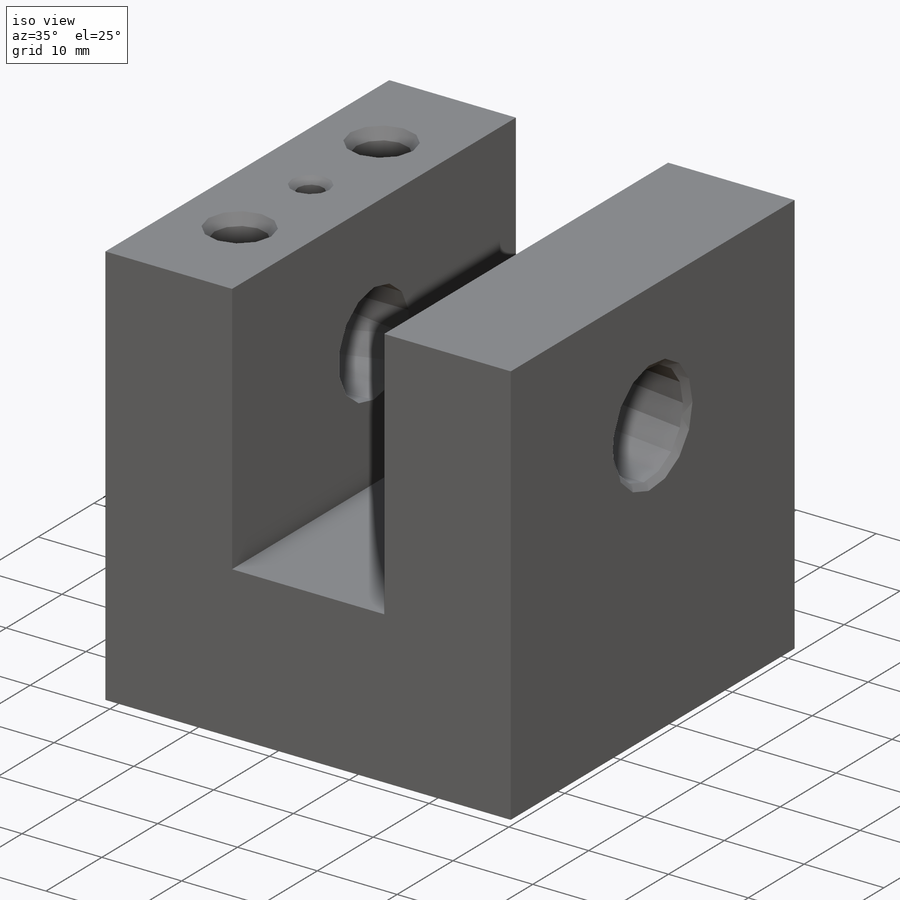
[diagram: iso view]
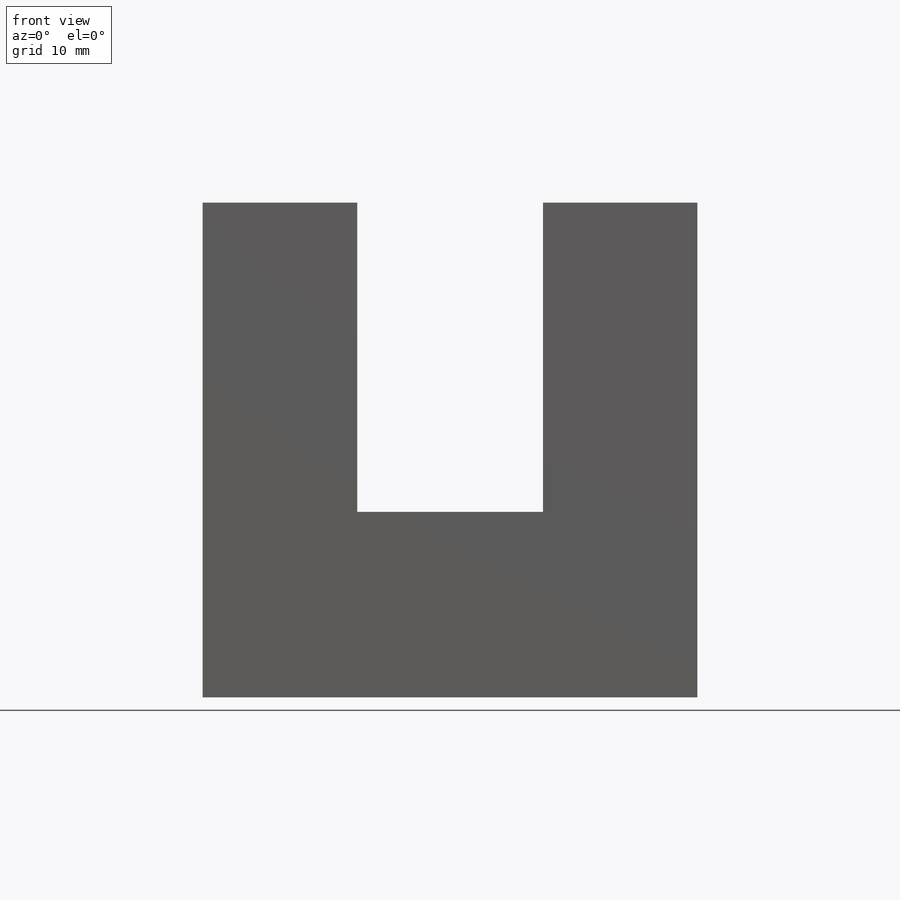
[diagram: front view]
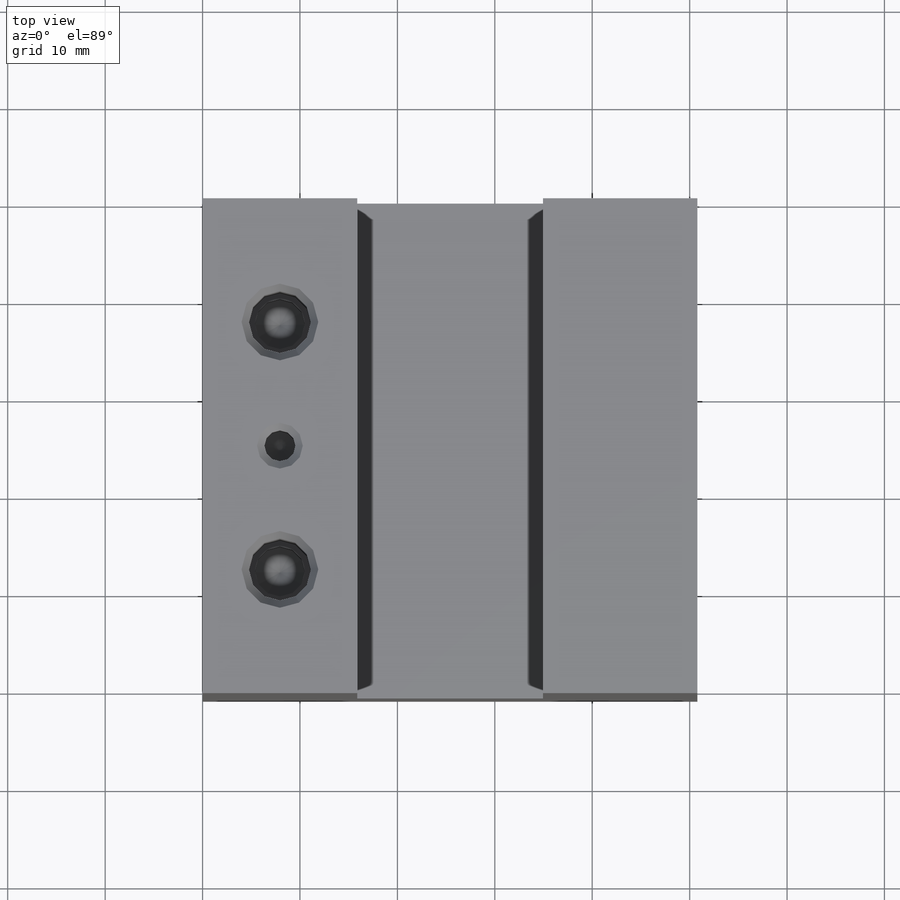
[diagram: top view]
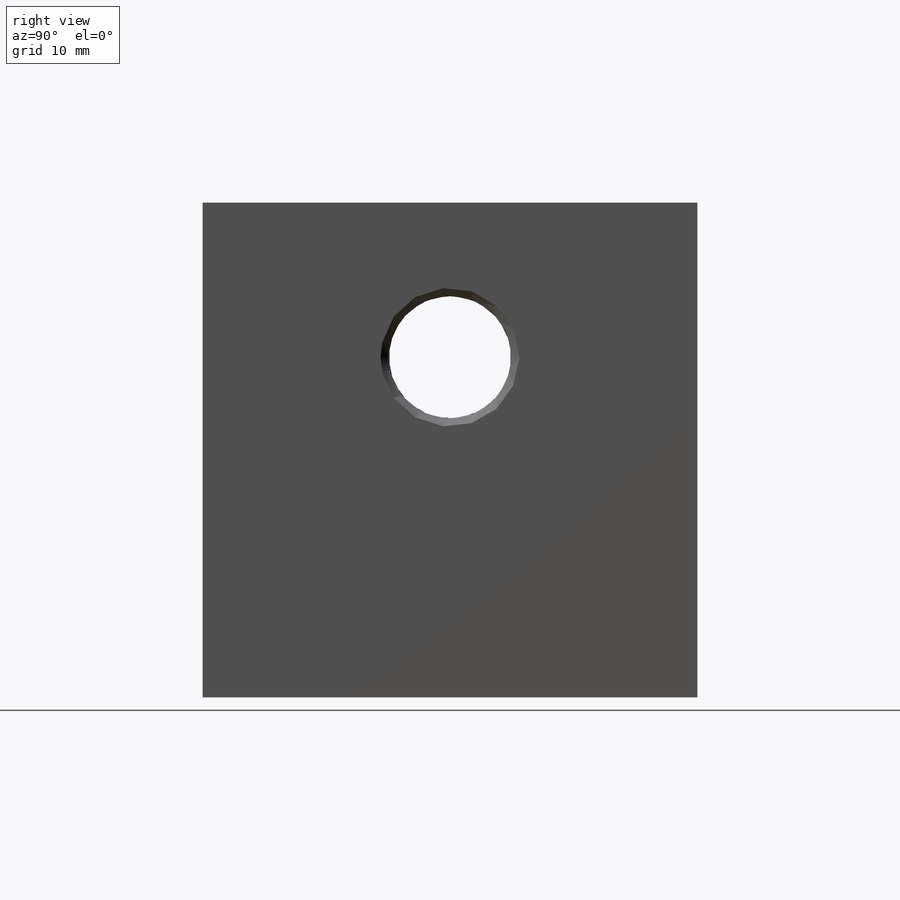
[diagram: right view]
SOLIDWORKS PART (.sldprt)
format: sldprt  version: not decoded by parser v0  size: 251,392 bytes
history: native  units: mm
features: sketch x5, chamfer x4, cut_extrude x2, material x1, extrude x1, hole x1 (+20 scaffold rows collapsed)
feature tree (34):
  scaffold x20  (default folders/planes/origin — collapsed)
  material  "6061 Alloy"
  sketch  "Sketch1"  dims[c1.D1=15.875mm c1.D2=19.0754mm c1.D3=15.875mm c1.D4=31.75mm c1.D5=31.75mm c1.D6=50.8mm c1.D7=19.0754mm c2.D3=50.8mm c2.D5=19.0754mm]
  extrude  "Extrude1"  Depth=50.8mm
  sketch  "Sketch3"  dims[D1=3.175mm D2=7.9375mm D3=25.4mm]
  cut_extrude  "Cut-Extrude2"  Depth=7.62mm
  chamfer  "Chamfer3"  Distance=0.762mm Angle=59deg
  chamfer  "Chamfer4"  Distance=0.762mm Angle=45deg
  sketch  "Sketch4"  dims[c1.D1=12.7254mm c1.D3=12.7mm c1.D2=15.875mm c2.D3=25.4mm]
  cut_extrude  "Cut-Extrude3"  [1 undecoded]
  hole  "1/4-20 Tapped Hole1"  Diameter=5.1054mm Depth=16.51mm
  sketch  "3DSketch1"  dims[c1.D2=4.699mm c1.D1=~8.025198mm c1.D5=7.9375mm c2.D2=~11.913968mm c2.D5=12.7mm c2.D3=7.9375mm c2.D4=~9.501465mm c3.D5=12.7mm c3.D4=12.7mm c4.D5=12.7mm c4.D1=7.9375mm c4.D2=12.7mm c4.D4=12.7mm]
  sketch  "Sketch5"  dims[hole-wizard template sketch: 34 standard entries collapsed; hole parameters above]
  chamfer  "Chamfer6"  Distance=0.762mm Angle=60deg
  chamfer  "Chamfer7"  Distance=0.762mm Angle=41deg
decode coverage: 12 of 13 modeling features carry decoded parameters
note: ~ marks probable driven/reference dimensions
note: 1 parameter value undecoded
note: suppression state not decoded; provenance and decode notes live in map.json
